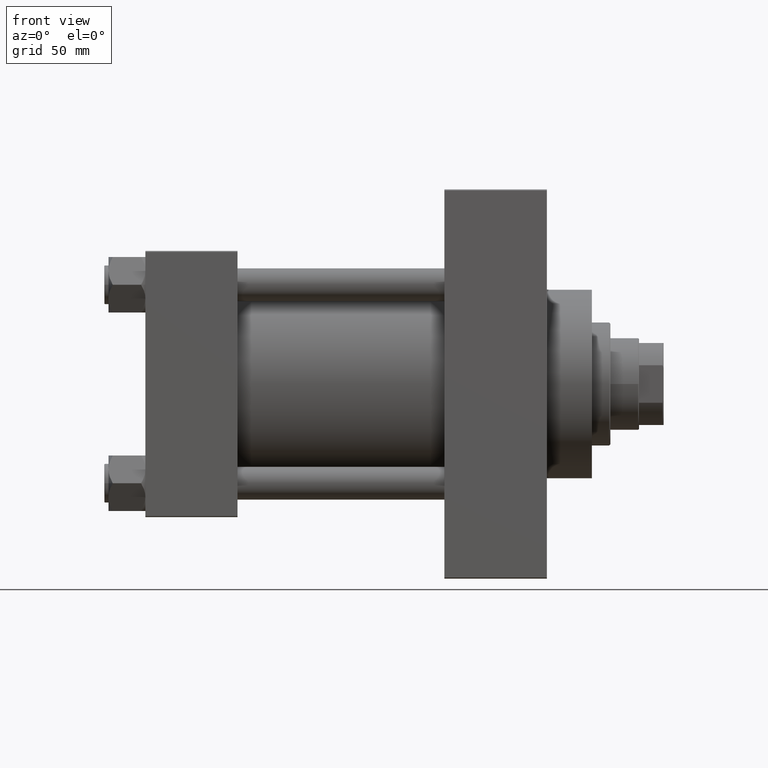
[diagram: clean part render]
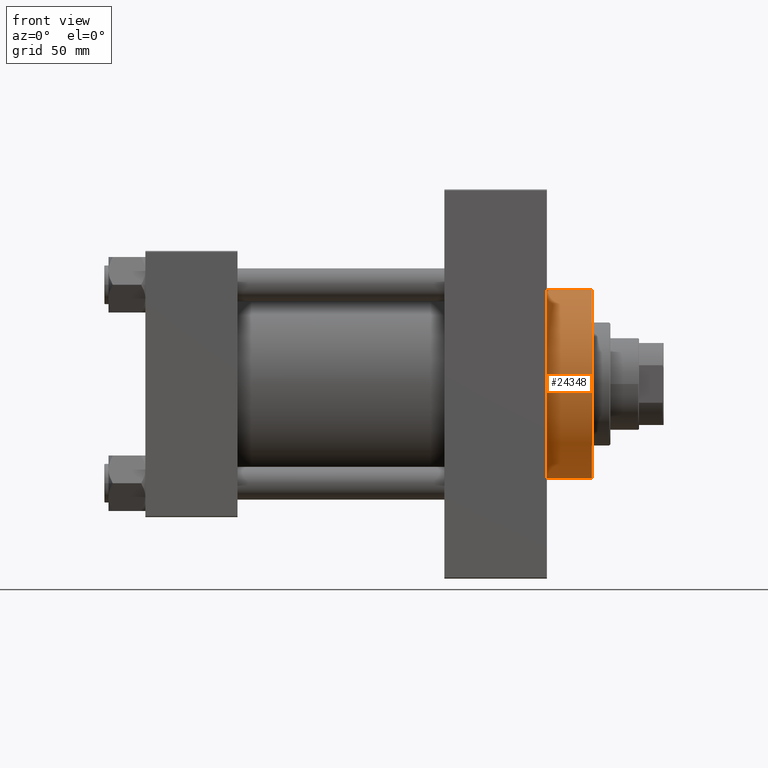
[diagram: same view with one face highlighted and labeled with its STEP entity id]
A machine part, front view. The second image highlights one B-rep face of the part: STEP entity #24348.
In plain terms, the highlighted cylindrical surface (partial cylindrical patch) has radius 46 mm, axis along (-1, -0, -0).
Its self-contained STEP definition (entity closure, byte-faithful):
#342 = VERTEX_POINT ( 'NONE', #7803 ) ;
#1176 = ORIENTED_EDGE ( 'NONE', *, *, #6995, .T. ) ;
#2244 = DIRECTION ( 'NONE',  ( 0.000000000000000000, 0.000000000000000000, -1.000000000000000000 ) ) ;
#3206 = CARTESIAN_POINT ( 'NONE',  ( 218.0000000000000000, 0.000000000000000000, 0.000000000000000000 ) ) ;
#6995 = EDGE_CURVE ( 'NONE', #22505, #36411, #18988, .T. ) ;
#7327 = EDGE_LOOP ( 'NONE', ( #15418, #26281, #35952, #1176 ) ) ;
#7803 = CARTESIAN_POINT ( 'NONE',  ( 218.0000000000000000, 5.633375276077824704E-15, -46.00000000000000000 ) ) ;
#8441 = EDGE_CURVE ( 'NONE', #29327, #342, #19868, .T. ) ;
#8650 = DIRECTION ( 'NONE',  ( 0.000000000000000000, 0.000000000000000000, 1.000000000000000000 ) ) ;
#9999 = DIRECTION ( 'NONE',  ( -1.000000000000000000, -0.000000000000000000, -0.000000000000000000 ) ) ;
#10782 = CARTESIAN_POINT ( 'NONE',  ( 196.0000000000000000, 5.633375276077824704E-15, -46.00000000000000000 ) ) ;
#11159 = DIRECTION ( 'NONE',  ( 1.000000000000000000, 0.000000000000000000, 0.000000000000000000 ) ) ;
#12745 = DIRECTION ( 'NONE',  ( -1.000000000000000000, -0.000000000000000000, -0.000000000000000000 ) ) ;
#13112 = DIRECTION ( 'NONE',  ( 1.000000000000000000, 0.000000000000000000, 0.000000000000000000 ) ) ;
#14947 = VECTOR ( 'NONE', #9999, 1000.000000000000000 ) ;
#15418 = ORIENTED_EDGE ( 'NONE', *, *, #25678, .F. ) ;
#15538 = CARTESIAN_POINT ( 'NONE',  ( 218.0000000000000000, 0.000000000000000000, 46.00000000000000000 ) ) ;
#15882 = FACE_OUTER_BOUND ( 'NONE', #7327, .T. ) ;
#18082 = CARTESIAN_POINT ( 'NONE',  ( 196.0000000000000000, 0.000000000000000000, 46.00000000000000000 ) ) ;
#18988 = CIRCLE ( 'NONE', #37475, 46.00000000000000000 ) ;
#19868 = CIRCLE ( 'NONE', #42927, 46.00000000000000000 ) ;
#22505 = VERTEX_POINT ( 'NONE', #18082 ) ;
#24348 = ADVANCED_FACE ( 'NONE', ( #15882 ), #26968, .T. ) ;
#25678 = EDGE_CURVE ( 'NONE', #342, #36411, #46422, .T. ) ;
#26281 = ORIENTED_EDGE ( 'NONE', *, *, #8441, .F. ) ;
#26968 = CYLINDRICAL_SURFACE ( 'NONE', #44969, 46.00000000000000000 ) ;
#29327 = VERTEX_POINT ( 'NONE', #15538 ) ;
#29378 = DIRECTION ( 'NONE',  ( -1.000000000000000000, -0.000000000000000000, -0.000000000000000000 ) ) ;
#31430 = VECTOR ( 'NONE', #29378, 1000.000000000000000 ) ;
#32523 = LINE ( 'NONE', #44328, #31430 ) ;
#34694 = CARTESIAN_POINT ( 'NONE',  ( 218.0000000000000000, 0.000000000000000000, 0.000000000000000000 ) ) ;
#35952 = ORIENTED_EDGE ( 'NONE', *, *, #39136, .T. ) ;
#36411 = VERTEX_POINT ( 'NONE', #10782 ) ;
#37475 = AXIS2_PLACEMENT_3D ( 'NONE', #46139, #13112, #2244 ) ;
#39136 = EDGE_CURVE ( 'NONE', #29327, #22505, #32523, .T. ) ;
#42927 = AXIS2_PLACEMENT_3D ( 'NONE', #3206, #11159, #43476 ) ;
#43040 = CARTESIAN_POINT ( 'NONE',  ( 218.0000000000000000, 5.633375276077824704E-15, -46.00000000000000000 ) ) ;
#43476 = DIRECTION ( 'NONE',  ( 0.000000000000000000, 0.000000000000000000, -1.000000000000000000 ) ) ;
#44328 = CARTESIAN_POINT ( 'NONE',  ( 218.0000000000000000, 0.000000000000000000, 46.00000000000000000 ) ) ;
#44969 = AXIS2_PLACEMENT_3D ( 'NONE', #34694, #12745, #8650 ) ;
#46139 = CARTESIAN_POINT ( 'NONE',  ( 196.0000000000000000, 0.000000000000000000, 0.000000000000000000 ) ) ;
#46422 = LINE ( 'NONE', #43040, #14947 ) ;